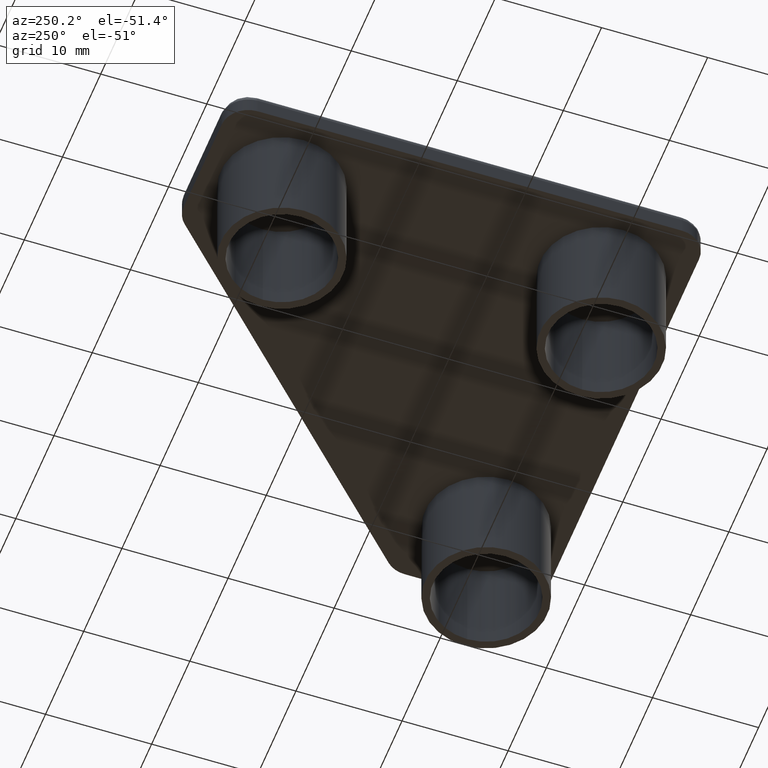
[diagram: clean part render]
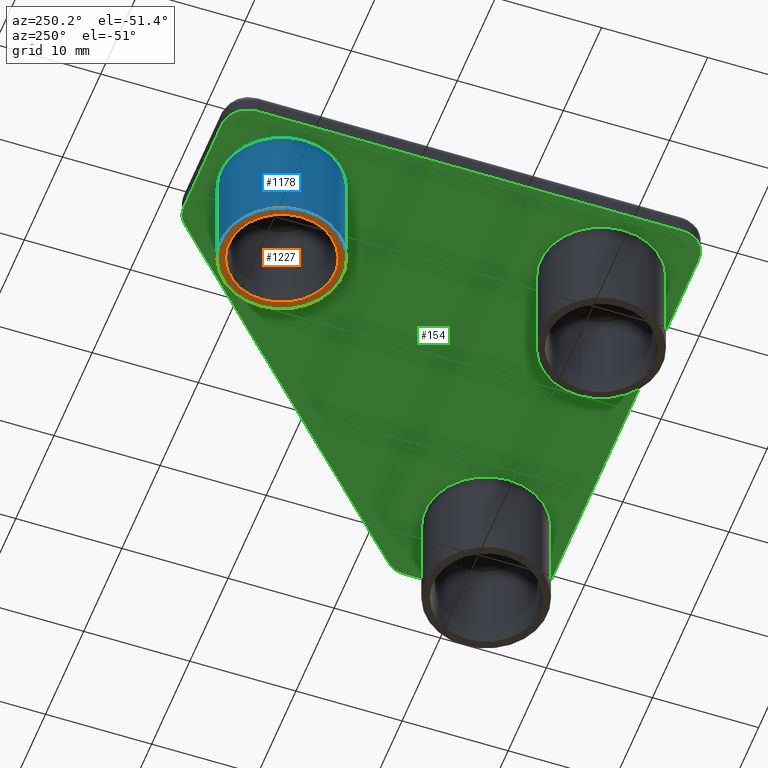
[diagram: same view with three faces highlighted in distinct colors, each labeled with its STEP entity id]
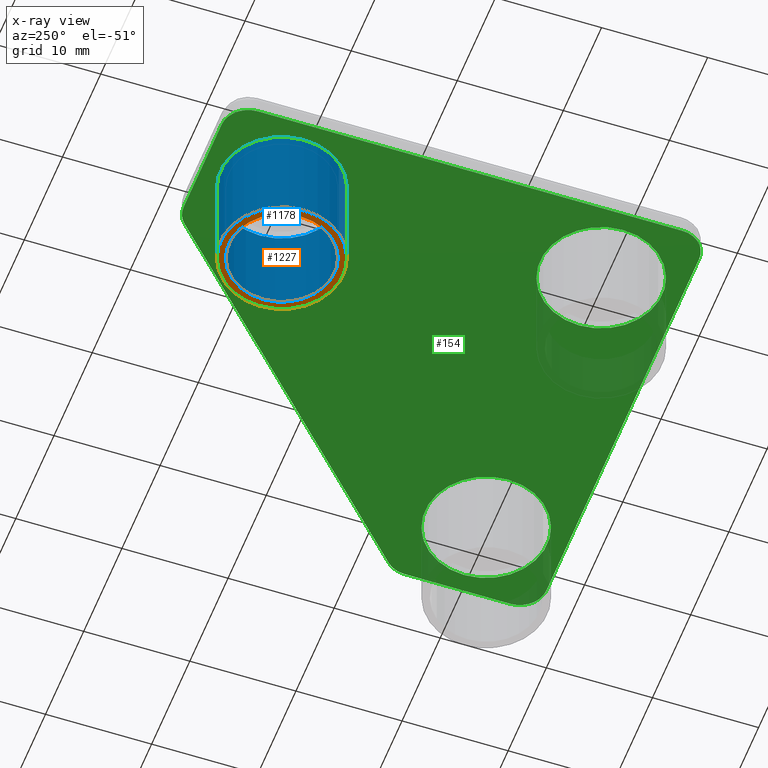
[diagram: x-ray of the same camera — body ghosted, the three highlighted faces saturated]
A machine part, auxiliary view with three faces highlighted in distinct colors.
The next image is the same camera in x-ray (body ghosted, the three faces saturated) — at least one of them is partly hidden behind the body in this view.
Their STEP definitions:

[orange] entity #1227 — the highlighted planar face has unit normal (0, 0, -1).
#1149=CARTESIAN_POINT('',(-20.799977796792124,37.549955999849772,-9.999999999959982));
#1150=VERTEX_POINT('',#1149);
#1151=CARTESIAN_POINT('',(-9.299977796838125,37.549955999849772,-9.999999999959982));
#1152=VERTEX_POINT('',#1151);
#1153=CARTESIAN_POINT('',(-15.049977796815124,37.549955999849772,-9.999999999959982));
#1154=DIRECTION('',(0.0,0.0,-1.0));
#1155=DIRECTION('',(1.0,0.0,0.0));
#1156=AXIS2_PLACEMENT_3D('',#1153,#1154,#1155);
#1157=CIRCLE('',#1156,5.749999999977001);
#1158=EDGE_CURVE('',#1150,#1152,#1157,.T.);
#1160=CARTESIAN_POINT('',(-15.049977796815124,37.549955999849772,-9.999999999959982));
#1161=DIRECTION('',(0.0,0.0,-1.0));
#1162=DIRECTION('',(1.0,0.0,0.0));
#1163=AXIS2_PLACEMENT_3D('',#1160,#1161,#1162);
#1164=CIRCLE('',#1163,5.749999999977001);
#1165=EDGE_CURVE('',#1152,#1150,#1164,.T.);
#1184=CARTESIAN_POINT('',(-20.049977796795126,37.549955999849772,-9.999999999959982));
#1185=VERTEX_POINT('',#1184);
#1186=CARTESIAN_POINT('',(-10.049977796835122,37.549955999849772,-9.999999999959982));
#1187=VERTEX_POINT('',#1186);
#1188=CARTESIAN_POINT('',(-15.049977796815124,37.549955999849772,-9.999999999959982));
#1189=DIRECTION('',(0.0,0.0,1.0));
#1190=DIRECTION('',(1.0,0.0,0.0));
#1191=AXIS2_PLACEMENT_3D('',#1188,#1189,#1190);
#1192=CIRCLE('',#1191,4.999999999980001);
#1193=EDGE_CURVE('',#1185,#1187,#1192,.T.);
#1195=CARTESIAN_POINT('',(-15.049977796815124,37.549955999849772,-9.999999999959982));
#1196=DIRECTION('',(0.0,0.0,1.0));
#1197=DIRECTION('',(1.0,0.0,0.0));
#1198=AXIS2_PLACEMENT_3D('',#1195,#1196,#1197);
#1199=CIRCLE('',#1198,4.999999999980001);
#1200=EDGE_CURVE('',#1187,#1185,#1199,.T.);
#1214=CARTESIAN_POINT('',(-21.949982521255130,44.449960724289781,-9.999999999959982));
#1215=DIRECTION('',(0.0,0.0,-1.0));
#1216=DIRECTION('',(1.0,0.0,0.0));
#1217=AXIS2_PLACEMENT_3D('',#1214,#1215,#1216);
#1218=PLANE('',#1217);
#1219=ORIENTED_EDGE('',*,*,#1165,.T.);
#1220=ORIENTED_EDGE('',*,*,#1158,.T.);
#1221=EDGE_LOOP('',(#1219,#1220));
#1222=FACE_OUTER_BOUND('',#1221,.T.);
#1223=ORIENTED_EDGE('',*,*,#1200,.T.);
#1224=ORIENTED_EDGE('',*,*,#1193,.T.);
#1225=EDGE_LOOP('',(#1223,#1224));
#1226=FACE_BOUND('',#1225,.T.);
#1227=ADVANCED_FACE('',(#1222,#1226),#1218,.T.);

[blue] entity #1178 — the highlighted cylindrical surface (bore or boss wall) has radius 5.75 mm, axis along (0, 0, -1).
#134=CARTESIAN_POINT('',(-20.799977796792124,37.549955999849772,0.0));
#135=VERTEX_POINT('',#134);
#136=CARTESIAN_POINT('',(-9.299977796838125,37.549955999849772,0.0));
#137=VERTEX_POINT('',#136);
#138=CARTESIAN_POINT('',(-15.049977796815124,37.549955999849772,0.0));
#139=DIRECTION('',(0.0,0.0,-1.0));
#140=DIRECTION('',(1.0,0.0,0.0));
#141=AXIS2_PLACEMENT_3D('',#138,#139,#140);
#142=CIRCLE('',#141,5.749999999977001);
#143=EDGE_CURVE('',#135,#137,#142,.T.);
#145=CARTESIAN_POINT('',(-15.049977796815124,37.549955999849772,0.0));
#146=DIRECTION('',(0.0,0.0,-1.0));
#147=DIRECTION('',(1.0,0.0,0.0));
#148=AXIS2_PLACEMENT_3D('',#145,#146,#147);
#149=CIRCLE('',#148,5.749999999977001);
#150=EDGE_CURVE('',#137,#135,#149,.T.);
#1144=CARTESIAN_POINT('',(-15.049977796815124,37.549955999849772,0.0));
#1145=DIRECTION('',(0.0,0.0,-1.0));
#1146=DIRECTION('',(1.0,0.0,0.0));
#1147=AXIS2_PLACEMENT_3D('',#1144,#1145,#1146);
#1148=CYLINDRICAL_SURFACE('',#1147,5.749999999977001);
#1149=CARTESIAN_POINT('',(-20.799977796792124,37.549955999849772,-9.999999999959982));
#1150=VERTEX_POINT('',#1149);
#1151=CARTESIAN_POINT('',(-9.299977796838125,37.549955999849772,-9.999999999959982));
#1152=VERTEX_POINT('',#1151);
#1153=CARTESIAN_POINT('',(-15.049977796815124,37.549955999849772,-9.999999999959982));
#1154=DIRECTION('',(0.0,0.0,-1.0));
#1155=DIRECTION('',(1.0,0.0,0.0));
#1156=AXIS2_PLACEMENT_3D('',#1153,#1154,#1155);
#1157=CIRCLE('',#1156,5.749999999977001);
#1158=EDGE_CURVE('',#1150,#1152,#1157,.T.);
#1159=ORIENTED_EDGE('',*,*,#1158,.F.);
#1160=CARTESIAN_POINT('',(-15.049977796815124,37.549955999849772,-9.999999999959982));
#1161=DIRECTION('',(0.0,0.0,-1.0));
#1162=DIRECTION('',(1.0,0.0,0.0));
#1163=AXIS2_PLACEMENT_3D('',#1160,#1161,#1162);
#1164=CIRCLE('',#1163,5.749999999977001);
#1165=EDGE_CURVE('',#1152,#1150,#1164,.T.);
#1166=ORIENTED_EDGE('',*,*,#1165,.F.);
#1167=CARTESIAN_POINT('',(-9.299977796838125,37.549955999849772,0.0));
#1168=DIRECTION('',(0.0,0.0,-1.0));
#1169=VECTOR('',#1168,9.999999999959982);
#1170=LINE('',#1167,#1169);
#1171=EDGE_CURVE('',#137,#1152,#1170,.T.);
#1172=ORIENTED_EDGE('',*,*,#1171,.F.);
#1173=ORIENTED_EDGE('',*,*,#150,.T.);
#1174=ORIENTED_EDGE('',*,*,#143,.T.);
#1175=ORIENTED_EDGE('',*,*,#1171,.T.);
#1176=EDGE_LOOP('',(#1159,#1166,#1172,#1173,#1174,#1175));
#1177=FACE_OUTER_BOUND('',#1176,.T.);
#1178=ADVANCED_FACE('',(#1177),#1148,.T.);

[green] entity #154 — the highlighted planar face has unit normal (0, 0, 1).
#2=CARTESIAN_POINT('',(-26.999976921299130,-4.499999774508175,0.0));
#3=DIRECTION('',(0.0,0.0,1.0));
#4=DIRECTION('',(1.0,0.0,0.0));
#5=AXIS2_PLACEMENT_3D('',#2,#3,#4);
#6=PLANE('',#5);
#7=CARTESIAN_POINT('',(-19.999976890545359,0.000000499999874,0.0));
#8=VERTEX_POINT('',#7);
#9=CARTESIAN_POINT('',(19.999976703044741,0.000000499999827,0.0));
#10=VERTEX_POINT('',#9);
#11=CARTESIAN_POINT('',(-19.999976890545359,0.000000499999874,0.0));
#12=DIRECTION('',(1.0,0.0,0.0));
#13=VECTOR('',#12,39.999953593590099);
#14=LINE('',#11,#13);
#15=EDGE_CURVE('',#8,#10,#14,.T.);
#16=ORIENTED_EDGE('',*,*,#15,.F.);
#17=CARTESIAN_POINT('',(-22.499976796785536,2.500000406240051,0.0));
#18=VERTEX_POINT('',#17);
#19=CARTESIAN_POINT('',(-19.999976890545359,2.500000406240051,0.0));
#20=DIRECTION('',(0.0,0.0,1.0));
#21=DIRECTION('',(1.224647E-016,-1.0,0.0));
#22=AXIS2_PLACEMENT_3D('',#19,#20,#21);
#23=CIRCLE('',#22,2.499999906240177);
#24=EDGE_CURVE('',#18,#8,#23,.T.);
#25=ORIENTED_EDGE('',*,*,#24,.F.);
#26=CARTESIAN_POINT('',(-22.499976796785500,42.499955999830036,0.0));
#27=VERTEX_POINT('',#26);
#28=CARTESIAN_POINT('',(-22.499976796785500,42.499955999830028,0.0));
#29=DIRECTION('',(0.0,-1.0,0.0));
#30=VECTOR('',#29,39.999955593589981);
#31=LINE('',#28,#30);
#32=EDGE_CURVE('',#27,#18,#31,.T.);
#33=ORIENTED_EDGE('',*,*,#32,.F.);
#34=CARTESIAN_POINT('',(-19.999976796795497,44.999955999820038,0.0));
#35=VERTEX_POINT('',#34);
#36=CARTESIAN_POINT('',(-19.999976796795497,42.499955999830036,0.0));
#37=DIRECTION('',(0.0,0.0,1.0));
#38=DIRECTION('',(1.0,0.0,0.0));
#39=AXIS2_PLACEMENT_3D('',#36,#37,#38);
#40=CIRCLE('',#39,2.499999999990003);
#41=EDGE_CURVE('',#35,#27,#40,.T.);
#42=ORIENTED_EDGE('',*,*,#41,.F.);
#43=CARTESIAN_POINT('',(-10.035555796835363,44.999955999820031,0.0));
#44=VERTEX_POINT('',#43);
#45=CARTESIAN_POINT('',(-10.035555796835363,44.999955999820031,0.0));
#46=DIRECTION('',(-1.0,0.0,0.0));
#47=VECTOR('',#46,9.964420999960135);
#48=LINE('',#45,#47);
#49=EDGE_CURVE('',#44,#35,#48,.T.);
#50=ORIENTED_EDGE('',*,*,#49,.F.);
#51=CARTESIAN_POINT('',(-8.267790390397970,44.267723593379706,0.0));
#52=VERTEX_POINT('',#51);
#53=CARTESIAN_POINT('',(-10.035555796835297,42.499958186942386,0.0));
#54=DIRECTION('',(0.0,0.0,1.0));
#55=DIRECTION('',(-2.629010E-014,1.0,0.0));
#56=AXIS2_PLACEMENT_3D('',#53,#54,#55);
#57=CIRCLE('',#56,2.499997812877652);
#58=EDGE_CURVE('',#52,#44,#57,.T.);
#59=ORIENTED_EDGE('',*,*,#58,.F.);
#60=CARTESIAN_POINT('',(21.767744203037456,14.232188999942801,0.0));
#61=VERTEX_POINT('',#60);
#62=CARTESIAN_POINT('',(21.767744203037459,14.232188999942803,0.0));
#63=DIRECTION('',(-0.707106781186530,0.707106781186565,0.0));
#64=VECTOR('',#63,42.476660375163696);
#65=LINE('',#62,#64);
#66=EDGE_CURVE('',#61,#52,#65,.T.);
#67=ORIENTED_EDGE('',*,*,#66,.F.);
#68=CARTESIAN_POINT('',(22.499977203035488,12.464422160532866,0.0));
#69=VERTEX_POINT('',#68);
#70=CARTESIAN_POINT('',(19.999977363626801,12.464422160532148,0.0));
#71=DIRECTION('',(0.0,0.0,1.0));
#72=DIRECTION('',(1.0,2.870593E-013,0.0));
#73=AXIS2_PLACEMENT_3D('',#70,#71,#72);
#74=CIRCLE('',#73,2.499999839408687);
#75=EDGE_CURVE('',#69,#61,#74,.T.);
#76=ORIENTED_EDGE('',*,*,#75,.F.);
#77=CARTESIAN_POINT('',(22.499977203034771,2.500000999989878,0.0));
#78=VERTEX_POINT('',#77);
#79=CARTESIAN_POINT('',(22.499977203034771,2.500000999989878,0.0));
#80=DIRECTION('',(0.0,1.0,0.0));
#81=VECTOR('',#80,9.964421160542988);
#82=LINE('',#79,#81);
#83=EDGE_CURVE('',#78,#69,#82,.T.);
#84=ORIENTED_EDGE('',*,*,#83,.F.);
#85=CARTESIAN_POINT('',(19.999976703044741,2.500000999989856,0.0));
#86=DIRECTION('',(0.0,0.0,1.0));
#87=DIRECTION('',(1.0,8.348875E-015,0.0));
#88=AXIS2_PLACEMENT_3D('',#85,#86,#87);
#89=CIRCLE('',#88,2.500000499990030);
#90=EDGE_CURVE('',#10,#78,#89,.T.);
#91=ORIENTED_EDGE('',*,*,#90,.F.);
#92=EDGE_LOOP('',(#16,#25,#33,#42,#50,#59,#67,#76,#84,#91));
#93=FACE_OUTER_BOUND('',#92,.T.);
#94=CARTESIAN_POINT('',(-20.799977796792124,7.449955999970369,0.0));
#95=VERTEX_POINT('',#94);
#96=CARTESIAN_POINT('',(-9.299977796838125,7.449955999970369,0.0));
#97=VERTEX_POINT('',#96);
#98=CARTESIAN_POINT('',(-15.049977796815124,7.449955999970369,0.0));
#99=DIRECTION('',(0.0,0.0,-1.0));
#100=DIRECTION('',(1.0,0.0,0.0));
#101=AXIS2_PLACEMENT_3D('',#98,#99,#100);
#102=CIRCLE('',#101,5.749999999977001);
#103=EDGE_CURVE('',#95,#97,#102,.T.);
#104=ORIENTED_EDGE('',*,*,#103,.F.);
#105=CARTESIAN_POINT('',(-15.049977796815124,7.449955999970369,0.0));
#106=DIRECTION('',(0.0,0.0,-1.0));
#107=DIRECTION('',(1.0,0.0,0.0));
#108=AXIS2_PLACEMENT_3D('',#105,#106,#107);
#109=CIRCLE('',#108,5.749999999977001);
#110=EDGE_CURVE('',#97,#95,#109,.T.);
#111=ORIENTED_EDGE('',*,*,#110,.F.);
#112=EDGE_LOOP('',(#104,#111));
#113=FACE_BOUND('',#112,.T.);
#114=CARTESIAN_POINT('',(9.300023203087616,7.449955999970369,0.0));
#115=VERTEX_POINT('',#114);
#116=CARTESIAN_POINT('',(20.800023203041615,7.449955999970369,0.0));
#117=VERTEX_POINT('',#116);
#118=CARTESIAN_POINT('',(15.050023203064615,7.449955999970369,0.0));
#119=DIRECTION('',(0.0,0.0,-1.0));
#120=DIRECTION('',(1.0,0.0,0.0));
#121=AXIS2_PLACEMENT_3D('',#118,#119,#120);
#122=CIRCLE('',#121,5.749999999977000);
#123=EDGE_CURVE('',#115,#117,#122,.T.);
#124=ORIENTED_EDGE('',*,*,#123,.F.);
#125=CARTESIAN_POINT('',(15.050023203064615,7.449955999970369,0.0));
#126=DIRECTION('',(0.0,0.0,-1.0));
#127=DIRECTION('',(1.0,0.0,0.0));
#128=AXIS2_PLACEMENT_3D('',#125,#126,#127);
#129=CIRCLE('',#128,5.749999999977000);
#130=EDGE_CURVE('',#117,#115,#129,.T.);
#131=ORIENTED_EDGE('',*,*,#130,.F.);
#132=EDGE_LOOP('',(#124,#131));
#133=FACE_BOUND('',#132,.T.);
#134=CARTESIAN_POINT('',(-20.799977796792124,37.549955999849772,0.0));
#135=VERTEX_POINT('',#134);
#136=CARTESIAN_POINT('',(-9.299977796838125,37.549955999849772,0.0));
#137=VERTEX_POINT('',#136);
#138=CARTESIAN_POINT('',(-15.049977796815124,37.549955999849772,0.0));
#139=DIRECTION('',(0.0,0.0,-1.0));
#140=DIRECTION('',(1.0,0.0,0.0));
#141=AXIS2_PLACEMENT_3D('',#138,#139,#140);
#142=CIRCLE('',#141,5.749999999977001);
#143=EDGE_CURVE('',#135,#137,#142,.T.);
#144=ORIENTED_EDGE('',*,*,#143,.F.);
#145=CARTESIAN_POINT('',(-15.049977796815124,37.549955999849772,0.0));
#146=DIRECTION('',(0.0,0.0,-1.0));
#147=DIRECTION('',(1.0,0.0,0.0));
#148=AXIS2_PLACEMENT_3D('',#145,#146,#147);
#149=CIRCLE('',#148,5.749999999977001);
#150=EDGE_CURVE('',#137,#135,#149,.T.);
#151=ORIENTED_EDGE('',*,*,#150,.F.);
#152=EDGE_LOOP('',(#144,#151));
#153=FACE_BOUND('',#152,.T.);
#154=ADVANCED_FACE('',(#93,#113,#133,#153),#6,.F.);